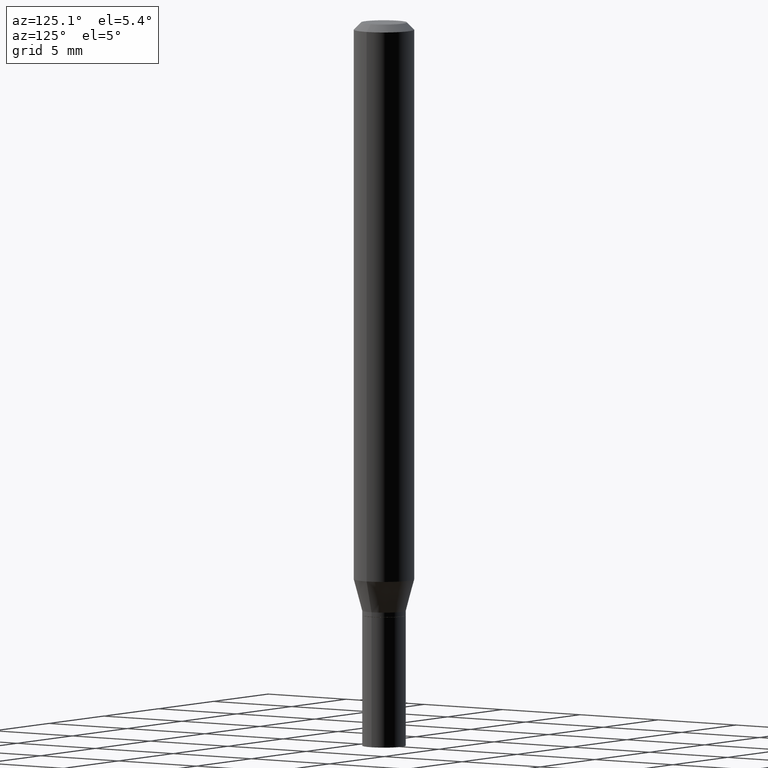
[diagram: clean part render]
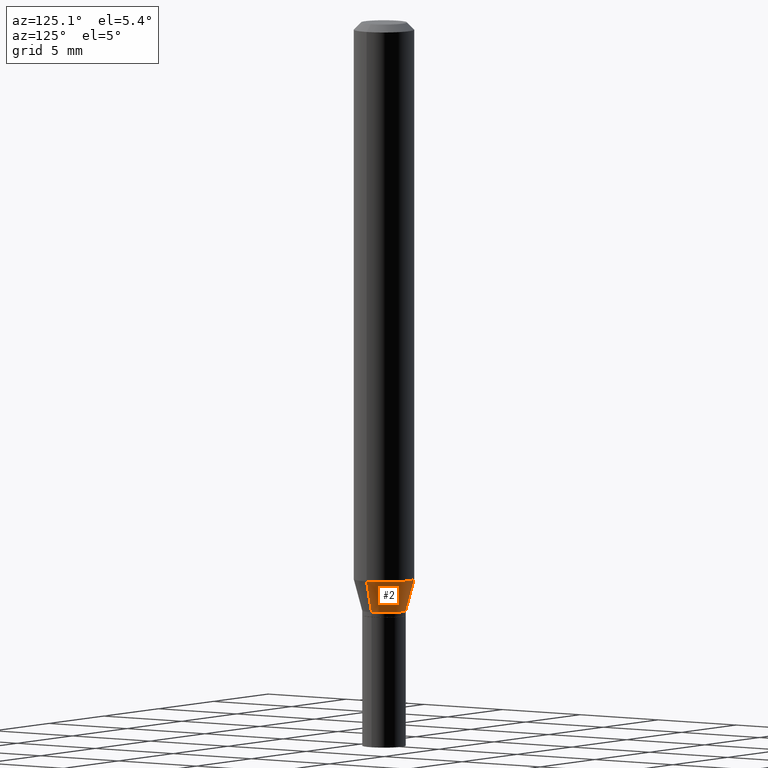
[diagram: same view with one face highlighted and labeled with its STEP entity id]
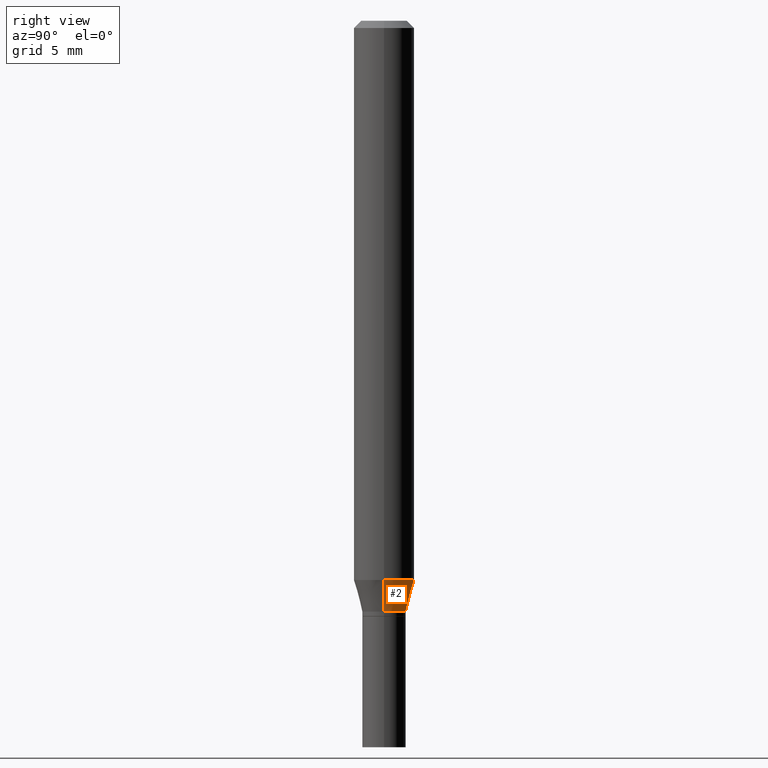
[diagram: same view with one face highlighted and labeled with its STEP entity id]
A machine part, auxiliary view. The second image highlights one B-rep face of the part: STEP entity #2.
A second angle (right view) of the same face is appended — the face is thin or edge-on in the first view.
In plain terms, the highlighted conical surface has half-angle 15 deg.
Its self-contained STEP definition (entity closure, byte-faithful):
#2 = ADVANCED_FACE ( 'NONE', ( #178 ), #172, .T. ) ;
#34 = CARTESIAN_POINT ( 'NONE',  ( -0.04500000000000019262, -3.939863002296591368E-15, -1.220000000000000195 ) ) ;
#44 = CARTESIAN_POINT ( 'NONE',  ( 0.04500000000000019262, -4.573840553884520788E-15, -1.220000000000000195 ) ) ;
#63 = AXIS2_PLACEMENT_3D ( 'NONE', #150, #253, #148 ) ;
#64 = CIRCLE ( 'NONE', #398, 0.04500000000000019262 ) ;
#65 = EDGE_CURVE ( 'NONE', #238, #457, #255, .T. ) ;
#95 = VECTOR ( 'NONE', #421, 39.37007874015748143 ) ;
#105 = DIRECTION ( 'NONE',  ( 1.000000000000000000, -6.982962677686270655E-15, 0.000000000000000000 ) ) ;
#108 = ORIENTED_EDGE ( 'NONE', *, *, #65, .F. ) ;
#110 = VERTEX_POINT ( 'NONE', #115 ) ;
#115 = CARTESIAN_POINT ( 'NONE',  ( -0.06250000000000000000, -3.587486272909356218E-15, -1.154689110867545443 ) ) ;
#141 = ORIENTED_EDGE ( 'NONE', *, *, #443, .F. ) ;
#148 = DIRECTION ( 'NONE',  ( 1.000000000000000000, -6.982962677686259611E-15, 0.000000000000000000 ) ) ;
#150 = CARTESIAN_POINT ( 'NONE',  ( 2.983471943545866670E-29, -4.259607233388637524E-15, -1.220000000000000195 ) ) ;
#156 = DIRECTION ( 'NONE',  ( 0.2588190451025205174, 1.565188264969628476E-15, 0.9659258262890684232 ) ) ;
#172 = CONICAL_SURFACE ( 'NONE', #63, 0.04500000000000019262, 0.2617993877991491858 ) ;
#178 = FACE_OUTER_BOUND ( 'NONE', #203, .T. ) ;
#192 = ORIENTED_EDGE ( 'NONE', *, *, #410, .T. ) ;
#199 = CARTESIAN_POINT ( 'NONE',  ( 0.06250000000000000000, -4.468010650114809714E-15, -1.154689110867545443 ) ) ;
#203 = EDGE_LOOP ( 'NONE', ( #252, #192, #141, #108 ) ) ;
#212 = EDGE_CURVE ( 'NONE', #238, #231, #64, .T. ) ;
#227 = DIRECTION ( 'NONE',  ( 1.000000000000000000, -6.982962677686259611E-15, 0.000000000000000000 ) ) ;
#231 = VERTEX_POINT ( 'NONE', #403 ) ;
#238 = VERTEX_POINT ( 'NONE', #453 ) ;
#252 = ORIENTED_EDGE ( 'NONE', *, *, #212, .T. ) ;
#253 = DIRECTION ( 'NONE',  ( -2.445468806185136597E-29, 3.491481338843145583E-15, 1.000000000000000000 ) ) ;
#255 = LINE ( 'NONE', #44, #317 ) ;
#259 = CIRCLE ( 'NONE', #278, 0.06250000000000000000 ) ;
#278 = AXIS2_PLACEMENT_3D ( 'NONE', #307, #458, #105 ) ;
#307 = CARTESIAN_POINT ( 'NONE',  ( 2.823756201468233313E-29, -4.031575482759418834E-15, -1.154689110867545443 ) ) ;
#317 = VECTOR ( 'NONE', #156, 39.37007874015748143 ) ;
#345 = LINE ( 'NONE', #34, #95 ) ;
#373 = DIRECTION ( 'NONE',  ( -2.445468806185136597E-29, 3.491481338843145583E-15, 1.000000000000000000 ) ) ;
#398 = AXIS2_PLACEMENT_3D ( 'NONE', #446, #373, #227 ) ;
#403 = CARTESIAN_POINT ( 'NONE',  ( -0.04500000000000019262, -3.763674637602973398E-15, -1.220000000000000195 ) ) ;
#410 = EDGE_CURVE ( 'NONE', #231, #110, #345, .T. ) ;
#421 = DIRECTION ( 'NONE',  ( -0.2588190451025205174, 5.211531920934544731E-15, 0.9659258262890684232 ) ) ;
#443 = EDGE_CURVE ( 'NONE', #457, #110, #259, .T. ) ;
#446 = CARTESIAN_POINT ( 'NONE',  ( 2.983471943545866670E-29, -4.259607233388637524E-15, -1.220000000000000195 ) ) ;
#453 = CARTESIAN_POINT ( 'NONE',  ( 0.04500000000000019262, -4.573840553884520788E-15, -1.220000000000000195 ) ) ;
#457 = VERTEX_POINT ( 'NONE', #199 ) ;
#458 = DIRECTION ( 'NONE',  ( -2.445468806185136597E-29, 3.491481338843145583E-15, 1.000000000000000000 ) ) ;